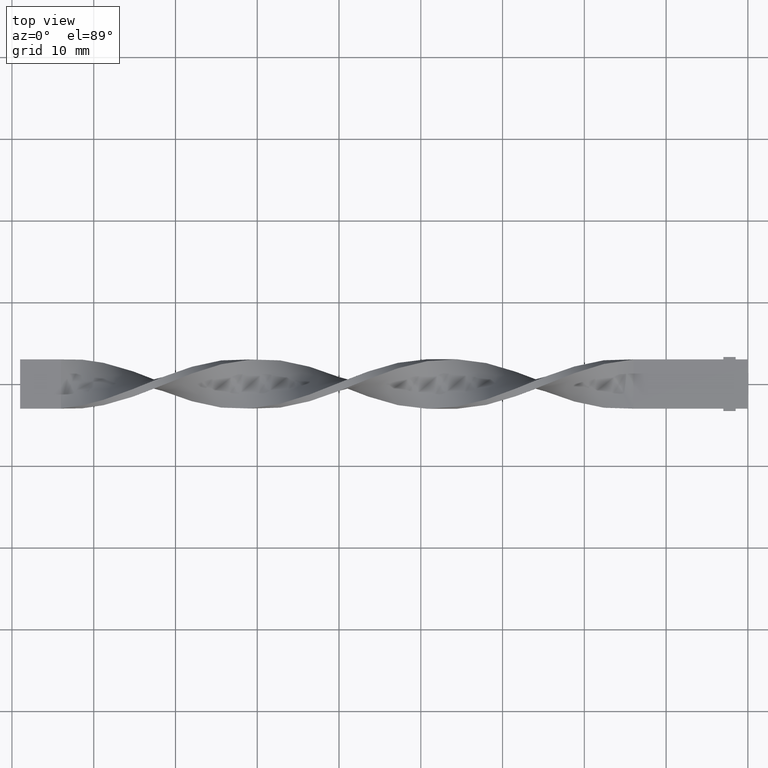
[diagram: clean part render]
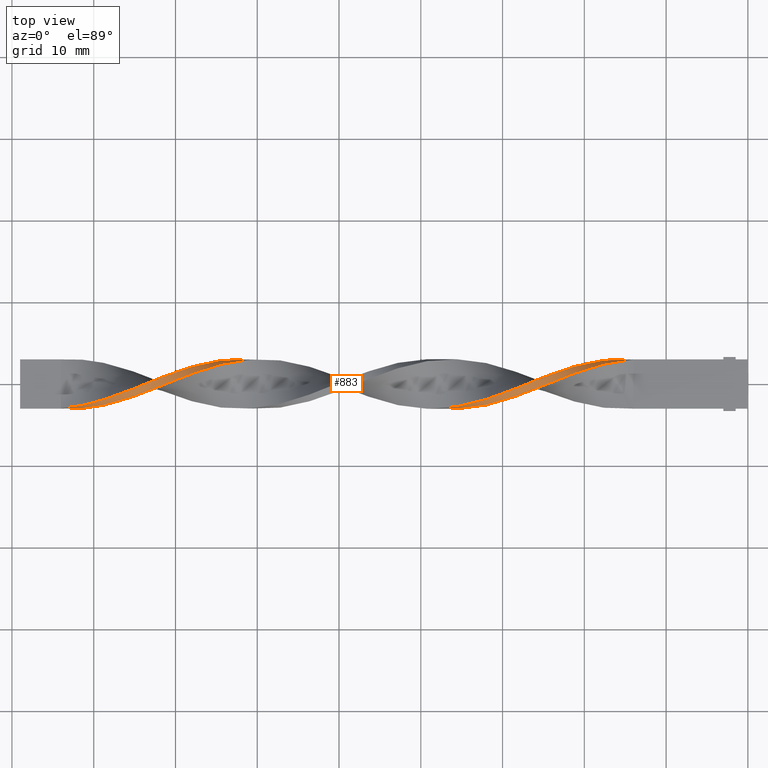
[diagram: same view with one face highlighted and labeled with its STEP entity id]
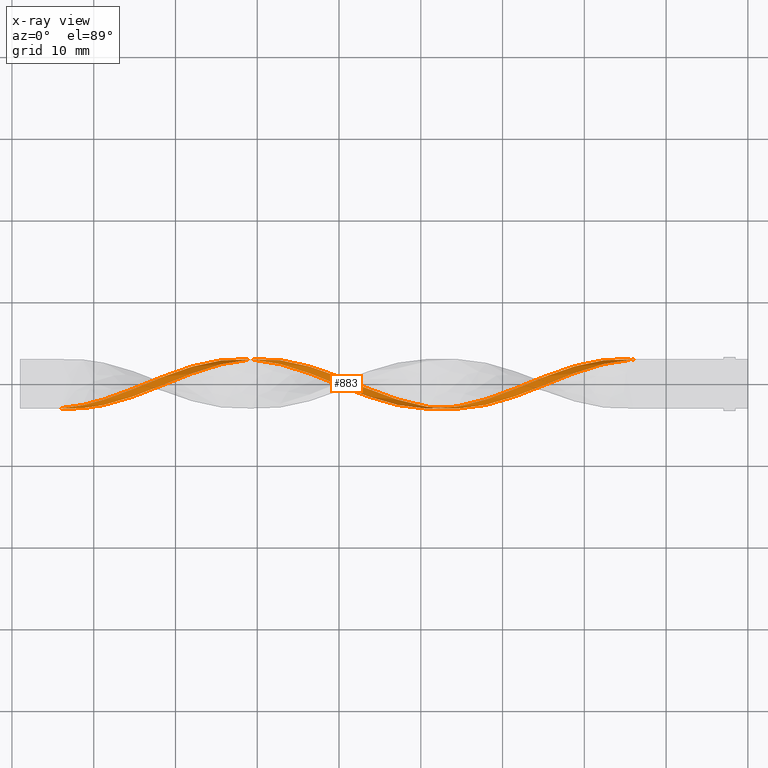
[diagram: x-ray of the same camera — body ghosted, the highlighted face saturated]
A machine part, top view. The second image highlights one B-rep face of the part: STEP entity #883.
The next image is the same camera in x-ray: the body ghosted, the highlighted face saturated — about 0% of this face is hidden behind the body in this view.
In plain terms, the highlighted face is a freeform B-spline surface patch.
Its self-contained STEP definition (entity closure, byte-faithful):
#4 = CARTESIAN_POINT ( 'NONE',  ( -55.28205128205128460, 2.577093573633699286, -1.615112600636835483 ) ) ;
#8 = CARTESIAN_POINT ( 'NONE',  ( -57.07692307692307310, 2.888729662981512458, -0.9514415033047024517 ) ) ;
#12 = CARTESIAN_POINT ( 'NONE',  ( -71.43589743589743080, -0.1347443962830574271, 3.038394962421822942 ) ) ;
#16 = CARTESIAN_POINT ( 'NONE',  ( -49.00000000000000000, 0.5036723384328409825, -3.022034030597047671 ) ) ;
#22 = VERTEX_POINT ( 'NONE', #492 ) ;
#24 = CARTESIAN_POINT ( 'NONE',  ( -42.71794871794872250, -1.913970915392905869, -2.363623348807935454 ) ) ;
#33 = CARTESIAN_POINT ( 'NONE',  ( -44.51282051282051100, -1.292702307246639037, -2.752983971046546685 ) ) ;
#36 = CARTESIAN_POINT ( 'NONE',  ( -84.00000000000000000, -2.999999999999999112, 0.5000000000000003331 ) ) ;
#37 = CARTESIAN_POINT ( 'NONE',  ( -20.28205128205128460, 2.380983398537113160, 1.928028413296780874 ) ) ;
#40 = CARTESIAN_POINT ( 'NONE',  ( -52.58974358974359120, 1.850388947743476065, -2.441810035334000872 ) ) ;
#47 = CARTESIAN_POINT ( 'NONE',  ( -34.64102564102564230, -2.647046231879883305, 1.542569853484617504 ) ) ;
#54 = CARTESIAN_POINT ( 'NONE',  ( -38.23076923076922640, -3.060710991611129472, 0.1357340503332191695 ) ) ;
#59 = CARTESIAN_POINT ( 'NONE',  ( -21.17948717948717885, 2.115686173140295168, 2.184919224315390540 ) ) ;
#62 = CARTESIAN_POINT ( 'NONE',  ( -57.07692307692307310, 2.424006490937743230, -1.836897528957911918 ) ) ;
#64 = CARTESIAN_POINT ( 'NONE',  ( -44.51282051282051100, -1.292702307246639037, -2.752983971046546685 ) ) ;
#66 = CARTESIAN_POINT ( 'NONE',  ( -77.71794871794874382, -2.380983398537112272, 1.928028413296781984 ) ) ;
#71 = CARTESIAN_POINT ( 'NONE',  ( -52.58974358974358410, 0.9584295337030710460, -2.909946448908425243 ) ) ;
#73 = CARTESIAN_POINT ( 'NONE',  ( -32.84615384615384670, -2.773203748730287632, 1.302196787976887871 ) ) ;
#77 = CARTESIAN_POINT ( 'NONE',  ( -78.61538461538461320, -2.577093573633699730, 1.615112600636835261 ) ) ;
#84 = CARTESIAN_POINT ( 'NONE',  ( -14.89743589743589602, 3.060710991611129472, -0.1357340503332185033 ) ) ;
#88 = CARTESIAN_POINT ( 'NONE',  ( -49.89743589743589069, -0.1347443962830601472, -3.038394962421822498 ) ) ;
#92 = CARTESIAN_POINT ( 'NONE',  ( -64.25641025641024839, 2.888729662981512902, 0.9514415033047003423 ) ) ;
#95 = CARTESIAN_POINT ( 'NONE',  ( -69.64102564102564941, 1.531322782470314392, 2.627746284534975718 ) ) ;
#97 = CARTESIAN_POINT ( 'NONE',  ( -49.89743589743589069, 0.8579644778149938533, -2.917858282166499784 ) ) ;
#101 = CARTESIAN_POINT ( 'NONE',  ( -50.79487179487178850, 0.2341835458667242131, -3.054755894246597769 ) ) ;
#102 = CARTESIAN_POINT ( 'NONE',  ( -84.00000000000000000, -2.999999999999999112, -0.4999999999999996669 ) ) ;
#104 = CARTESIAN_POINT ( 'NONE',  ( -24.76923076923076650, -0.1347443962830574271, 3.038394962421822942 ) ) ;
#108 = CARTESIAN_POINT ( 'NONE',  ( -52.58974358974358410, 1.850388947743476065, -2.441810035334000872 ) ) ;
#110 = CARTESIAN_POINT ( 'NONE',  ( -59.76923076923076650, 2.939289008388868307, -0.8642659496667832730 ) ) ;
#116 = CARTESIAN_POINT ( 'NONE',  ( -61.56410256410256920, 2.939289008388868751, 0.8642659496667817187 ) ) ;
#118 = CARTESIAN_POINT ( 'NONE',  ( -78.61538461538461320, -1.913970915392904315, 2.363623348807935898 ) ) ;
#123 = EDGE_LOOP ( 'NONE', ( #554, #1041, #1528, #793 ) ) ;
#129 = CARTESIAN_POINT ( 'NONE',  ( -57.97435897435897090, 3.004255577232739061, -0.6006862186325138131 ) ) ;
#133 = CARTESIAN_POINT ( 'NONE',  ( -37.33333333333332860, -2.999999999999999112, -0.4999999999999996669 ) ) ;
#141 = CARTESIAN_POINT ( 'NONE',  ( -40.92307692307691980, -2.424006490937744562, -1.836897528957909920 ) ) ;
#144 = CARTESIAN_POINT ( 'NONE',  ( -83.10256410256410220, -3.060710991611129472, -0.1357340503332171988 ) ) ;
#152 = CARTESIAN_POINT ( 'NONE',  ( -77.71794871794872961, -2.380983398537112272, 1.928028413296781984 ) ) ;
#158 = CARTESIAN_POINT ( 'NONE',  ( -24.76923076923076650, 0.8579644778149966289, 2.917858282166499340 ) ) ;
#163 = CARTESIAN_POINT ( 'NONE',  ( -48.10256410256410220, 0.1347443962830564002, -3.038394962421822942 ) ) ;
#171 = CARTESIAN_POINT ( 'NONE',  ( -20.28205128205128460, 2.380983398537113160, 1.928028413296780874 ) ) ;
#179 = CARTESIAN_POINT ( 'NONE',  ( -17.58974358974358765, 2.888729662981512902, 0.9514415033047003423 ) ) ;
#186 = CARTESIAN_POINT ( 'NONE',  ( -33.74358974358974450, -2.424006490937744562, 1.836897528957910586 ) ) ;
#190 = CARTESIAN_POINT ( 'NONE',  ( -66.05128205128204399, 2.577093573633700174, 1.615112600636833928 ) ) ;
#196 = CARTESIAN_POINT ( 'NONE',  ( -61.56410256410256920, 3.060710991611129472, -0.1357340503332185311 ) ) ;
#198 = CARTESIAN_POINT ( 'NONE',  ( -31.94871794871794535, -2.577093573633699730, 1.615112600636835261 ) ) ;
#206 = CARTESIAN_POINT ( 'NONE',  ( -37.33333333333332860, -2.999999999999999112, -0.4999999999999996669 ) ) ;
#209 = CARTESIAN_POINT ( 'NONE',  ( -48.10256410256410220, -0.8579644778149976281, -2.917858282166499340 ) ) ;
#213 = CARTESIAN_POINT ( 'NONE',  ( -43.61538461538461320, -2.380983398537113604, -1.928028413296780430 ) ) ;
#216 = CARTESIAN_POINT ( 'NONE',  ( -43.61538461538461320, -1.626975080790205697, -2.596021493184667239 ) ) ;
#218 = CARTESIAN_POINT ( 'NONE',  ( -82.20512820512820440, -2.793167620134375806, 1.203417901575700055 ) ) ;
#223 = CARTESIAN_POINT ( 'NONE',  ( -41.82051282051281760, -2.200966749995605820, -2.131225204431203224 ) ) ;
#226 = CARTESIAN_POINT ( 'NONE',  ( -57.97435897435897090, 2.647046231879883305, -1.542569853484617948 ) ) ;
#229 = CARTESIAN_POINT ( 'NONE',  ( -25.66666666666666785, -0.5036723384328412045, 3.022034030597047671 ) ) ;
#255 = CARTESIAN_POINT ( 'NONE',  ( -71.43589743589743080, -0.1347443962830574271, 3.038394962421822942 ) ) ;
#260 = CARTESIAN_POINT ( 'NONE',  ( -59.76923076923077360, 3.060710991611129916, 0.1357340503332168102 ) ) ;
#264 = CARTESIAN_POINT ( 'NONE',  ( -33.74358974358974450, -2.888729662981512902, 0.9514415033047007864 ) ) ;
#269 = CARTESIAN_POINT ( 'NONE',  ( -45.41025641025640880, -0.9584295337030747097, -2.909946448908424355 ) ) ;
#272 = CARTESIAN_POINT ( 'NONE',  ( -75.92307692307693401, -1.850388947743477175, 2.441810035334000428 ) ) ;
#277 = CARTESIAN_POINT ( 'NONE',  ( -65.15384615384614619, 2.200966749995605376, 2.131225204431203224 ) ) ;
#282 = CARTESIAN_POINT ( 'NONE',  ( -31.05128205128205821, -1.626975080790203920, 2.596021493184668572 ) ) ;
#292 = CARTESIAN_POINT ( 'NONE',  ( -75.02564102564102200, -1.531322782470313726, 2.627746284534976162 ) ) ;
#298 = CARTESIAN_POINT ( 'NONE',  ( -76.82051282051281760, -2.115686173140294724, 2.184919224315390540 ) ) ;
#302 = CARTESIAN_POINT ( 'NONE',  ( -72.33333333333332860, 0.5036723384328416486, 3.022034030597047671 ) ) ;
#308 = CARTESIAN_POINT ( 'NONE',  ( -29.25641025641025905, -0.9584295337030727113, 2.909946448908425243 ) ) ;
#312 = CARTESIAN_POINT ( 'NONE',  ( -81.30769230769233502, -2.647046231879883305, 1.542569853484617726 ) ) ;
#315 = CARTESIAN_POINT ( 'NONE',  ( -47.20512820512820440, -0.2341835458667255176, -3.054755894246597769 ) ) ;
#317 = CARTESIAN_POINT ( 'NONE',  ( -16.69230769230769340, 3.004255577232739061, 0.6006862186325124808 ) ) ;
#326 = CARTESIAN_POINT ( 'NONE',  ( -22.07692307692308020, 1.850388947743477619, 2.441810035334000428 ) ) ;
#329 = CARTESIAN_POINT ( 'NONE',  ( -48.10256410256410220, -0.8579644778149976281, -2.917858282166499340 ) ) ;
#331 = CARTESIAN_POINT ( 'NONE',  ( -18.48717948717948545, 2.200966749995605376, 2.131225204431203224 ) ) ;
#333 = CARTESIAN_POINT ( 'NONE',  ( -49.89743589743589069, -0.1347443962830601472, -3.038394962421822498 ) ) ;
#338 = CARTESIAN_POINT ( 'NONE',  ( -21.17948717948717885, 1.292702307246639037, 2.752983971046546685 ) ) ;
#342 = CARTESIAN_POINT ( 'NONE',  ( -65.15384615384614619, 2.773203748730287632, 1.302196787976887871 ) ) ;
#343 = CARTESIAN_POINT ( 'NONE',  ( -84.00000000000000000, -2.999999999999999112, 0.1666666666666670182 ) ) ;
#348 = CARTESIAN_POINT ( 'NONE',  ( -23.87179487179487580, 0.2341835458667257397, 3.054755894246597769 ) ) ;
#351 = CARTESIAN_POINT ( 'NONE',  ( -56.17948717948717530, 2.200966749995605376, -2.131225204431204112 ) ) ;
#360 = CARTESIAN_POINT ( 'NONE',  ( -61.56410256410256920, 3.060710991611129472, -0.1357340503332185033 ) ) ;
#371 = CARTESIAN_POINT ( 'NONE',  ( -43.61538461538461320, -2.380983398537114049, -1.928028413296780430 ) ) ;
#372 = VECTOR ( 'NONE', #422, 1000.000000000000000 ) ;
#382 = CARTESIAN_POINT ( 'NONE',  ( -66.94871794871794179, 1.626975080790204808, 2.596021493184667683 ) ) ;
#387 = CARTESIAN_POINT ( 'NONE',  ( -72.33333333333332860, -0.5036723384328412045, 3.022034030597047671 ) ) ;
#390 = CARTESIAN_POINT ( 'NONE',  ( -57.07692307692307310, 2.888729662981512458, -0.9514415033047024517 ) ) ;
#397 = CARTESIAN_POINT ( 'NONE',  ( -84.00000000000000000, -2.999999999999999112, -0.4999999999999996669 ) ) ;
#403 = CARTESIAN_POINT ( 'NONE',  ( -41.82051282051281760, -2.200966749995605820, -2.131225204431203224 ) ) ;
#410 = CARTESIAN_POINT ( 'NONE',  ( -56.17948717948717530, 2.773203748730287632, -1.302196787976888315 ) ) ;
#415 = CARTESIAN_POINT ( 'NONE',  ( -23.87179487179487580, 1.212256617197150943, 2.813682533735952340 ) ) ;
#418 = VERTEX_POINT ( 'NONE', #1083 ) ;
#419 = CARTESIAN_POINT ( 'NONE',  ( -67.84615384615385381, 1.292702307246639037, 2.752983971046546685 ) ) ;
#422 = DIRECTION ( 'NONE',  ( -0.000000000000000000, -0.000000000000000000, -1.000000000000000000 ) ) ;
#424 = CARTESIAN_POINT ( 'NONE',  ( -25.66666666666666785, 0.5036723384328416486, 3.022034030597047671 ) ) ;
#428 = CARTESIAN_POINT ( 'NONE',  ( -80.41025641025640880, -2.888729662981512902, 0.9514415033047007864 ) ) ;
#431 = CARTESIAN_POINT ( 'NONE',  ( -74.12820512820512420, -1.212256617197150721, 2.813682533735952340 ) ) ;
#437 = CARTESIAN_POINT ( 'NONE',  ( -53.48717948717948900, 1.292702307246637927, -2.752983971046546685 ) ) ;
#439 = CARTESIAN_POINT ( 'NONE',  ( -36.43589743589743790, -3.060710991611129472, -0.1357340503332171988 ) ) ;
#441 = CARTESIAN_POINT ( 'NONE',  ( -81.30769230769232081, -3.004255577232739061, 0.6006862186325134800 ) ) ;
#445 = CARTESIAN_POINT ( 'NONE',  ( -78.61538461538461320, -1.913970915392904315, 2.363623348807935898 ) ) ;
#448 = CARTESIAN_POINT ( 'NONE',  ( -30.15384615384615330, -2.115686173140294724, 2.184919224315390540 ) ) ;
#450 = CARTESIAN_POINT ( 'NONE',  ( -83.10256410256410220, -3.060710991611129472, -0.1357340503332171711 ) ) ;
#454 = CARTESIAN_POINT ( 'NONE',  ( -33.74358974358974450, -2.888729662981512902, 0.9514415033047007864 ) ) ;
#467 = CARTESIAN_POINT ( 'NONE',  ( -71.43589743589743080, 0.8579644778149966289, 2.917858282166499340 ) ) ;
#471 = CARTESIAN_POINT ( 'NONE',  ( -19.38461538461538325, 1.913970915392905425, 2.363623348807935454 ) ) ;
#474 = CARTESIAN_POINT ( 'NONE',  ( -54.38461538461538680, 1.626975080790202366, -2.596021493184669016 ) ) ;
#483 = CARTESIAN_POINT ( 'NONE',  ( -62.46153846153845990, 2.793167620134376694, 1.203417901575699167 ) ) ;
#486 = CARTESIAN_POINT ( 'NONE',  ( -60.66666666666666430, 2.999999999999999112, -0.5000000000000000000 ) ) ;
#492 = CARTESIAN_POINT ( 'NONE',  ( -13.99999999999999822, 2.999999999999999112, -0.5000000000000000000 ) ) ;
#494 = CARTESIAN_POINT ( 'NONE',  ( -57.07692307692307310, 2.424006490937743230, -1.836897528957911918 ) ) ;
#499 = CARTESIAN_POINT ( 'NONE',  ( -44.51282051282051100, -2.115686173140295168, -2.184919224315390540 ) ) ;
#501 = CARTESIAN_POINT ( 'NONE',  ( -18.48717948717948545, 2.200966749995605376, 2.131225204431203224 ) ) ;
#509 = CARTESIAN_POINT ( 'NONE',  ( -32.84615384615384670, -2.773203748730287632, 1.302196787976888093 ) ) ;
#522 = CARTESIAN_POINT ( 'NONE',  ( -50.79487179487178850, 1.212256617197149611, -2.813682533735953228 ) ) ;
#526 = CARTESIAN_POINT ( 'NONE',  ( -16.69230769230769695, 3.004255577232739061, 0.6006862186325124808 ) ) ;
#536 = CARTESIAN_POINT ( 'NONE',  ( -28.35897435897435770, -0.5963065397848987814, 2.982351171577511728 ) ) ;
#539 = CARTESIAN_POINT ( 'NONE',  ( -64.25641025641024839, 2.424006490937744562, 1.836897528957910142 ) ) ;
#542 = CARTESIAN_POINT ( 'NONE',  ( -21.17948717948717885, 2.115686173140295168, 2.184919224315390540 ) ) ;
#546 = CARTESIAN_POINT ( 'NONE',  ( -75.92307692307691980, -1.850388947743477397, 2.441810035334000428 ) ) ;
#551 = CARTESIAN_POINT ( 'NONE',  ( -39.12820512820512420, -3.032483284421934044, -0.2324760841496460451 ) ) ;
#554 = ORIENTED_EDGE ( 'NONE', *, *, #1392, .T. ) ;
#555 = CARTESIAN_POINT ( 'NONE',  ( -82.20512820512820440, -3.032483284421934044, 0.2324760841496482100 ) ) ;
#560 = CARTESIAN_POINT ( 'NONE',  ( -75.92307692307693401, -0.9584295337030727113, 2.909946448908424799 ) ) ;
#569 = CARTESIAN_POINT ( 'NONE',  ( -14.89743589743589602, 2.939289008388868751, 0.8642659496667816077 ) ) ;
#570 = CARTESIAN_POINT ( 'NONE',  ( -67.84615384615385381, 2.115686173140295168, 2.184919224315390540 ) ) ;
#576 = CARTESIAN_POINT ( 'NONE',  ( -46.30769230769230660, -1.531322782470314836, -2.627746284534975718 ) ) ;
#579 = CARTESIAN_POINT ( 'NONE',  ( -45.41025641025640880, -0.9584295337030748207, -2.909946448908423910 ) ) ;
#581 = CARTESIAN_POINT ( 'NONE',  ( -27.46153846153846345, -0.2341835458667254066, 3.054755894246597769 ) ) ;
#586 = CARTESIAN_POINT ( 'NONE',  ( -62.46153846153845990, 3.032483284421934044, 0.2324760841496470720 ) ) ;
#589 = CARTESIAN_POINT ( 'NONE',  ( -73.23076923076924061, 0.1347443962830584541, 3.038394962421822498 ) ) ;
#592 = CARTESIAN_POINT ( 'NONE',  ( -58.87179487179486870, 2.793167620134375362, -1.203417901575701610 ) ) ;
#596 = CARTESIAN_POINT ( 'NONE',  ( -26.56410256410256210, -0.8579644778149956297, 2.917858282166499784 ) ) ;
#598 = CARTESIAN_POINT ( 'NONE',  ( -47.20512820512820440, -1.212256617197150721, -2.813682533735952340 ) ) ;
#606 = CARTESIAN_POINT ( 'NONE',  ( -72.33333333333332860, 0.5036723384328416486, 3.022034030597047671 ) ) ;
#611 = CARTESIAN_POINT ( 'NONE',  ( -65.15384615384614619, 2.200966749995605376, 2.131225204431203224 ) ) ;
#620 = CARTESIAN_POINT ( 'NONE',  ( -46.30769230769230660, -1.531322782470314836, -2.627746284534975718 ) ) ;
#625 = CARTESIAN_POINT ( 'NONE',  ( -67.84615384615385381, 1.292702307246639037, 2.752983971046546685 ) ) ;
#630 = CARTESIAN_POINT ( 'NONE',  ( -69.64102564102564941, 0.5963065397848997806, 2.982351171577511284 ) ) ;
#635 = CARTESIAN_POINT ( 'NONE',  ( -69.64102564102564941, 0.5963065397848997806, 2.982351171577511284 ) ) ;
#639 = CARTESIAN_POINT ( 'NONE',  ( -46.30769230769230660, -0.5963065397849001137, -2.982351171577511284 ) ) ;
#640 = CARTESIAN_POINT ( 'NONE',  ( -33.74358974358974450, -2.424006490937744562, 1.836897528957910586 ) ) ;
#651 = VERTEX_POINT ( 'NONE', #1194 ) ;
#652 = CARTESIAN_POINT ( 'NONE',  ( -36.43589743589743790, -3.060710991611129472, -0.1357340503332171711 ) ) ;
#658 = CARTESIAN_POINT ( 'NONE',  ( -58.87179487179486870, 3.032483284421933600, -0.2324760841496498753 ) ) ;
#661 = CARTESIAN_POINT ( 'NONE',  ( -31.94871794871794535, -1.913970915392904315, 2.363623348807935898 ) ) ;
#669 = CARTESIAN_POINT ( 'NONE',  ( -17.58974358974358765, 2.888729662981512902, 0.9514415033047003423 ) ) ;
#681 = CARTESIAN_POINT ( 'NONE',  ( -64.25641025641024839, 2.888729662981512902, 0.9514415033047003423 ) ) ;
#688 = CARTESIAN_POINT ( 'NONE',  ( -13.99999999999999822, 2.999999999999999112, 0.5000000000000000000 ) ) ;
#690 = CARTESIAN_POINT ( 'NONE',  ( -57.97435897435897090, 2.647046231879883305, -1.542569853484618170 ) ) ;
#693 = CARTESIAN_POINT ( 'NONE',  ( -25.66666666666666785, 0.5036723384328416486, 3.022034030597047671 ) ) ;
#697 = CARTESIAN_POINT ( 'NONE',  ( -74.12820512820512420, -0.2341835458667254066, 3.054755894246597769 ) ) ;
#700 = CARTESIAN_POINT ( 'NONE',  ( -40.02564102564102200, -2.647046231879884637, -1.542569853484615505 ) ) ;
#703 = CARTESIAN_POINT ( 'NONE',  ( -32.84615384615384670, -2.200966749995605376, 2.131225204431203668 ) ) ;
#708 = CARTESIAN_POINT ( 'NONE',  ( -40.92307692307691980, -2.888729662981512902, -0.9514415033047001202 ) ) ;
#714 = CARTESIAN_POINT ( 'NONE',  ( -70.53846153846153300, 1.212256617197150943, 2.813682533735952340 ) ) ;
#718 = CARTESIAN_POINT ( 'NONE',  ( -50.79487179487178850, 0.2341835458667242409, -3.054755894246597769 ) ) ;
#720 = CARTESIAN_POINT ( 'NONE',  ( -46.30769230769230660, -0.5963065397849001137, -2.982351171577511284 ) ) ;
#724 = CARTESIAN_POINT ( 'NONE',  ( -22.07692307692308020, 0.9584295337030730444, 2.909946448908425243 ) ) ;
#728 = CARTESIAN_POINT ( 'NONE',  ( -16.69230769230769695, 2.647046231879884193, 1.542569853484616615 ) ) ;
#730 = CARTESIAN_POINT ( 'NONE',  ( -66.05128205128204399, 2.577093573633700174, 1.615112600636833928 ) ) ;
#733 = CARTESIAN_POINT ( 'NONE',  ( -26.56410256410256210, -0.8579644778149956297, 2.917858282166499784 ) ) ;
#740 = CARTESIAN_POINT ( 'NONE',  ( -58.87179487179486870, 3.032483284421933600, -0.2324760841496498753 ) ) ;
#751 = CARTESIAN_POINT ( 'NONE',  ( -49.00000000000000000, -0.5036723384328419817, -3.022034030597047671 ) ) ;
#763 = CARTESIAN_POINT ( 'NONE',  ( -54.38461538461538680, 2.380983398537111384, -1.928028413296783095 ) ) ;
#768 = CARTESIAN_POINT ( 'NONE',  ( -74.12820512820510999, -1.212256617197150721, 2.813682533735952340 ) ) ;
#769 =( BOUNDED_CURVE ( )  B_SPLINE_CURVE ( 2, ( #1196, #84, #1545, #317, #179, #1444, #1189, #171, #59, #326, #1081, #1063, #962, #693, #1553, #581, #1458, #308, #1466, #1319, #837, #703, #186, #47, #1215, #1090, #1569, #1072, #1561, #947, #1451, #828, #980, #371, #499, #1006, #620, #598, #209, #751, #333, #101, #1223, #1601, #1107, #474, #1484, #351, #494, #226, #1497, #110, #486, #360, #1364, #1345, #92, #342, #730, #853, #970, #1241, #998, #714, #467, #606, #589, #1098, #1584, #1232, #876, #1114, #118, #1616, #870, #1475, #218, #1257, #990 ),
 .UNSPECIFIED., .F., .T. ) 
 B_SPLINE_CURVE_WITH_KNOTS ( ( 3, 2, 2, 2, 2, 2, 2, 2, 2, 2, 2, 2, 2, 2, 2, 2, 2, 2, 2, 2, 2, 2, 2, 2, 2, 2, 2, 2, 2, 2, 2, 2, 2, 2, 2, 2, 2, 2, 2, 3 ),
 ( 0.000000000000000000, 0.01923076923076923184, 0.03846153846153846367, 0.05769230769230768857, 0.07692307692307692735, 0.09615384615384615918, 0.1153846153846153771, 0.1346153846153846090, 0.1538461538461538547, 0.1730769230769230449, 0.1923076923076923184, 0.2115384615384615363, 0.2307692307692307543, 0.2500000000000000000, 0.2692307692307692180, 0.2884615384615384359, 0.3076923076923077094, 0.3269230769230769273, 0.3461538461538460898, 0.3653846153846153633, 0.3846153846153846367, 0.4038461538461539102, 0.4230769230769230727, 0.4423076923076922906, 0.4615384615384615086, 0.4807692307692307820, 0.5000000000000000000, 0.5192307692307692735, 0.5384615384615384359, 0.5576923076923077094, 0.5769230769230768718, 0.5961538461538461453, 0.6153846153846154188, 0.6346153846153845812, 0.6538461538461538547, 0.6730769230769230171, 0.6923076923076921796, 0.7115384615384615641, 0.7307692307692307265, 0.7500000000000000000 ),
 .UNSPECIFIED. ) 
 CURVE ( )  GEOMETRIC_REPRESENTATION_ITEM ( )  RATIONAL_B_SPLINE_CURVE ( ( 1.000000000000000000, 0.9927088740980539727, 1.000000000000000000, 0.9927088740980539727, 1.000000000000000000, 0.9927088740980539727, 1.000000000000000000, 0.9927088740980539727, 1.000000000000000000, 0.9927088740980539727, 1.000000000000000000, 0.9927088740980539727, 1.000000000000000000, 0.9927088740980539727, 1.000000000000000000, 0.9927088740980539727, 1.000000000000000000, 0.9927088740980539727, 1.000000000000000000, 0.9927088740980539727, 1.000000000000000000, 0.9927088740980539727, 1.000000000000000000, 0.9927088740980539727, 1.000000000000000000, 0.9927088740980539727, 1.000000000000000000, 0.9927088740980539727, 1.000000000000000000, 0.9927088740980539727, 1.000000000000000000, 0.9927088740980539727, 1.000000000000000000, 0.9927088740980539727, 1.000000000000000000, 0.9927088740980539727, 1.000000000000000000, 0.9927088740980539727, 1.000000000000000000, 0.9927088740980539727, 1.000000000000000000, 0.9927088740980539727, 1.000000000000000000, 0.9927088740980539727, 1.000000000000000000, 0.9927088740980539727, 1.000000000000000000, 0.9927088740980539727, 1.000000000000000000, 0.9927088740980539727, 1.000000000000000000, 0.9927088740980539727, 1.000000000000000000, 0.9927088740980539727, 1.000000000000000000, 0.9927088740980539727, 1.000000000000000000, 0.9927088740980539727, 1.000000000000000000, 0.9927088740980539727, 1.000000000000000000, 0.9927088740980539727, 1.000000000000000000, 0.9927088740980539727, 1.000000000000000000, 0.9927088740980539727, 1.000000000000000000, 0.9927088740980539727, 1.000000000000000000, 0.9927088740980539727, 1.000000000000000000, 0.9927088740980539727, 1.000000000000000000, 0.9927088740980539727, 1.000000000000000000, 0.9927088740980539727, 1.000000000000000000, 0.9927088740980539727, 1.000000000000000000 ) ) 
 REPRESENTATION_ITEM ( '' )  );
#773 = CARTESIAN_POINT ( 'NONE',  ( -14.89743589743589602, 3.060710991611129472, -0.1357340503332185311 ) ) ;
#777 = CARTESIAN_POINT ( 'NONE',  ( -43.61538461538461320, -1.626975080790205919, -2.596021493184667239 ) ) ;
#781 = CARTESIAN_POINT ( 'NONE',  ( -79.51282051282051100, -2.773203748730287632, 1.302196787976887871 ) ) ;
#785 = CARTESIAN_POINT ( 'NONE',  ( -61.56410256410256920, 2.939289008388868751, 0.8642659496667816077 ) ) ;
#793 = ORIENTED_EDGE ( 'NONE', *, *, #1101, .F. ) ;
#804 = CARTESIAN_POINT ( 'NONE',  ( -36.43589743589743790, -2.939289008388868751, 0.8642659496667827179 ) ) ;
#810 = CARTESIAN_POINT ( 'NONE',  ( -79.51282051282051100, -2.773203748730287632, 1.302196787976888093 ) ) ;
#814 = CARTESIAN_POINT ( 'NONE',  ( -80.41025641025640880, -2.424006490937744562, 1.836897528957910586 ) ) ;
#819 = CARTESIAN_POINT ( 'NONE',  ( -84.00000000000000000, -2.999999999999999112, -0.4999999999999996669 ) ) ;
#824 = CARTESIAN_POINT ( 'NONE',  ( -42.71794871794872250, -2.577093573633700618, -1.615112600636833928 ) ) ;
#826 = CARTESIAN_POINT ( 'NONE',  ( -48.10256410256410220, 0.1347443962830564002, -3.038394962421822942 ) ) ;
#828 = CARTESIAN_POINT ( 'NONE',  ( -41.82051282051281760, -2.773203748730288076, -1.302196787976887205 ) ) ;
#837 = CARTESIAN_POINT ( 'NONE',  ( -31.94871794871794535, -1.913970915392904315, 2.363623348807935898 ) ) ;
#840 = CARTESIAN_POINT ( 'NONE',  ( -49.00000000000000711, -0.5036723384328419817, -3.022034030597047671 ) ) ;
#843 = CARTESIAN_POINT ( 'NONE',  ( -42.71794871794872250, -1.913970915392905869, -2.363623348807935454 ) ) ;
#849 = CARTESIAN_POINT ( 'NONE',  ( -54.38461538461538680, 1.626975080790202366, -2.596021493184669016 ) ) ;
#851 = CARTESIAN_POINT ( 'NONE',  ( -22.07692307692308376, 0.9584295337030730444, 2.909946448908424799 ) ) ;
#853 = CARTESIAN_POINT ( 'NONE',  ( -66.94871794871795601, 2.380983398537113160, 1.928028413296780874 ) ) ;
#858 = CARTESIAN_POINT ( 'NONE',  ( -31.05128205128205821, -2.380983398537112272, 1.928028413296781984 ) ) ;
#870 = CARTESIAN_POINT ( 'NONE',  ( -80.41025641025640880, -2.424006490937744562, 1.836897528957910586 ) ) ;
#876 = CARTESIAN_POINT ( 'NONE',  ( -76.82051282051281760, -1.292702307246638371, 2.752983971046546685 ) ) ;
#879 = CARTESIAN_POINT ( 'NONE',  ( -29.25641025641025905, -1.850388947743477397, 2.441810035334000428 ) ) ;
#883 = ADVANCED_FACE ( 'NONE', ( #1096 ), #1048, .T. ) ;
#884 = CARTESIAN_POINT ( 'NONE',  ( -63.35897435897435770, 2.647046231879884193, 1.542569853484616615 ) ) ;
#895 = CARTESIAN_POINT ( 'NONE',  ( -73.23076923076924061, -0.8579644778149956297, 2.917858282166499784 ) ) ;
#901 = CARTESIAN_POINT ( 'NONE',  ( -34.64102564102564230, -3.004255577232739061, 0.6006862186325134800 ) ) ;
#904 = CARTESIAN_POINT ( 'NONE',  ( -18.48717948717948545, 2.773203748730287632, 1.302196787976887649 ) ) ;
#908 = CARTESIAN_POINT ( 'NONE',  ( -55.28205128205128460, 2.577093573633699286, -1.615112600636835483 ) ) ;
#911 = CARTESIAN_POINT ( 'NONE',  ( -82.20512820512820440, -3.032483284421934044, 0.2324760841496482100 ) ) ;
#916 = CARTESIAN_POINT ( 'NONE',  ( -60.66666666666666430, 2.999999999999999112, 0.5000000000000000000 ) ) ;
#919 = CARTESIAN_POINT ( 'NONE',  ( -80.41025641025640880, -2.888729662981512902, 0.9514415033047007864 ) ) ;
#922 = CARTESIAN_POINT ( 'NONE',  ( -31.94871794871794535, -2.577093573633699730, 1.615112600636835261 ) ) ;
#928 = CARTESIAN_POINT ( 'NONE',  ( -34.64102564102564230, -2.647046231879883305, 1.542569853484617726 ) ) ;
#935 = CARTESIAN_POINT ( 'NONE',  ( -13.99999999999999822, 2.999999999999999112, 0.5000000000000000000 ) ) ;
#936 = CARTESIAN_POINT ( 'NONE',  ( -78.61538461538461320, -2.577093573633699730, 1.615112600636835261 ) ) ;
#943 = CARTESIAN_POINT ( 'NONE',  ( -63.35897435897435770, 3.004255577232739061, 0.6006862186325124808 ) ) ;
#947 = CARTESIAN_POINT ( 'NONE',  ( -40.02564102564102200, -3.004255577232739505, -0.6006862186325113706 ) ) ;
#950 = CARTESIAN_POINT ( 'NONE',  ( -16.69230769230769340, 2.647046231879884193, 1.542569853484616615 ) ) ;
#954 = CARTESIAN_POINT ( 'NONE',  ( -38.23076923076922640, -2.939289008388868751, -0.8642659496667810526 ) ) ;
#959 = CARTESIAN_POINT ( 'NONE',  ( -41.82051282051281760, -2.773203748730288076, -1.302196787976887205 ) ) ;
#962 = CARTESIAN_POINT ( 'NONE',  ( -24.76923076923076650, 0.8579644778149966289, 2.917858282166499340 ) ) ;
#967 = CARTESIAN_POINT ( 'NONE',  ( -17.58974358974358765, 2.424006490937744562, 1.836897528957910142 ) ) ;
#970 = CARTESIAN_POINT ( 'NONE',  ( -67.84615384615385381, 2.115686173140295168, 2.184919224315390540 ) ) ;
#971 = CARTESIAN_POINT ( 'NONE',  ( -84.00000000000000000, -2.999999999999999112, -0.1666666666666663521 ) ) ;
#973 = CARTESIAN_POINT ( 'NONE',  ( -20.28205128205128460, 1.626975080790205030, 2.596021493184667683 ) ) ;
#975 = CARTESIAN_POINT ( 'NONE',  ( -44.51282051282051100, -2.115686173140295168, -2.184919224315390540 ) ) ;
#980 = CARTESIAN_POINT ( 'NONE',  ( -42.71794871794872250, -2.577093573633700618, -1.615112600636833928 ) ) ;
#988 = CARTESIAN_POINT ( 'NONE',  ( -53.48717948717948900, 2.115686173140294724, -2.184919224315391428 ) ) ;
#990 = CARTESIAN_POINT ( 'NONE',  ( -84.00000000000000000, -2.999999999999999112, 0.5000000000000003331 ) ) ;
#996 = CARTESIAN_POINT ( 'NONE',  ( -51.69230769230769340, 1.531322782470313726, -2.627746284534976162 ) ) ;
#998 = CARTESIAN_POINT ( 'NONE',  ( -69.64102564102564941, 1.531322782470314392, 2.627746284534975718 ) ) ;
#1000 = CARTESIAN_POINT ( 'NONE',  ( -28.35897435897435770, -1.531322782470313726, 2.627746284534976162 ) ) ;
#1006 = CARTESIAN_POINT ( 'NONE',  ( -45.41025641025640880, -1.850388947743478951, -2.441810035333998652 ) ) ;
#1012 = CARTESIAN_POINT ( 'NONE',  ( -70.53846153846153300, 0.2341835458667257397, 3.054755894246597769 ) ) ;
#1016 = CARTESIAN_POINT ( 'NONE',  ( -66.05128205128204399, 1.913970915392905425, 2.363623348807935454 ) ) ;
#1022 = CARTESIAN_POINT ( 'NONE',  ( -70.53846153846153300, 0.2341835458667257397, 3.054755894246597769 ) ) ;
#1025 = CARTESIAN_POINT ( 'NONE',  ( -73.23076923076924061, -0.8579644778149956297, 2.917858282166499784 ) ) ;
#1034 = CARTESIAN_POINT ( 'NONE',  ( -19.38461538461538325, 2.577093573633700174, 1.615112600636833928 ) ) ;
#1037 = CARTESIAN_POINT ( 'NONE',  ( -40.02564102564102200, -2.647046231879884637, -1.542569853484615505 ) ) ;
#1041 = ORIENTED_EDGE ( 'NONE', *, *, #1169, .T. ) ;
#1046 = CARTESIAN_POINT ( 'NONE',  ( -27.46153846153846345, -0.2341835458667254066, 3.054755894246597769 ) ) ;
#1048 =( BOUNDED_SURFACE ( )  B_SPLINE_SURFACE ( 1, 2, ( 
 ( #1582, #1079, #1591, #728, #967, #331, #471, #1472, #338, #851, #1482, #348, #1335, #1204, #596, #1213, #1575, #1448, #448, #858, #198, #73, #454, #1354, #1565, #439, #206, #954, #1362, #700, #1559, #223, #843, #216, #64, #579, #720, #315, #826, #1230, #97, #1378, #996, #108, #988, #763, #4, #1370, #390, #129, #740, #260, #1390, #116, #483, #884, #1268, #611, #1260, #382, #625, #1133, #635, #1012, #12, #1519, #1025, #431, #292, #272, #1306, #152, #936, #781, #919, #1298, #911, #144, #397 ),
 ( #1407, #773, #1174, #526, #669, #904, #1034, #37, #542, #1524, #1289, #415, #158, #424, #1163, #1046, #536, #1533, #1422, #282, #661, #1539, #640, #928, #1431, #804, #1184, #54, #551, #1058, #708, #959, #824, #213, #975, #1219, #576, #1352, #329, #840, #88, #718, #1228, #71, #437, #849, #1453, #1333, #62, #690, #592, #1076, #1557, #196, #586, #943, #681, #1572, #190, #1589, #570, #1315, #95, #1210, #1340, #302, #1446, #697, #1102, #560, #1462, #1067, #445, #1200, #814, #312, #1470, #1094, #1326 ) ),
 .UNSPECIFIED., .F., .F., .F. ) 
 B_SPLINE_SURFACE_WITH_KNOTS ( ( 2, 2 ),
 ( 3, 2, 2, 2, 2, 2, 2, 2, 2, 2, 2, 2, 2, 2, 2, 2, 2, 2, 2, 2, 2, 2, 2, 2, 2, 2, 2, 2, 2, 2, 2, 2, 2, 2, 2, 2, 2, 2, 2, 3 ),
 ( 0.000000000000000000, 1.000000000000000000 ),
 ( 0.000000000000000000, 0.01923076923076923184, 0.03846153846153846367, 0.05769230769230769551, 0.07692307692307692735, 0.09615384615384615918, 0.1153846153846153910, 0.1346153846153846090, 0.1538461538461538547, 0.1730769230769230727, 0.1923076923076923184, 0.2115384615384615363, 0.2307692307692307820, 0.2500000000000000000, 0.2692307692307692180, 0.2884615384615384359, 0.3076923076923077094, 0.3269230769230769273, 0.3461538461538461453, 0.3653846153846153633, 0.3846153846153846367, 0.4038461538461538547, 0.4230769230769230727, 0.4423076923076922906, 0.4615384615384615641, 0.4807692307692307820, 0.5000000000000000000, 0.5192307692307692735, 0.5384615384615384359, 0.5576923076923077094, 0.5769230769230768718, 0.5961538461538461453, 0.6153846153846154188, 0.6346153846153845812, 0.6538461538461538547, 0.6730769230769231282, 0.6923076923076922906, 0.7115384615384615641, 0.7307692307692307265, 0.7500000000000000000 ),
 .UNSPECIFIED. ) 
 GEOMETRIC_REPRESENTATION_ITEM ( )  RATIONAL_B_SPLINE_SURFACE ( (
 ( 1.000000000000000000, 0.9927088740980539727, 1.000000000000000000, 0.9927088740980539727, 1.000000000000000000, 0.9927088740980539727, 1.000000000000000000, 0.9927088740980539727, 1.000000000000000000, 0.9927088740980539727, 1.000000000000000000, 0.9927088740980539727, 1.000000000000000000, 0.9927088740980539727, 1.000000000000000000, 0.9927088740980539727, 1.000000000000000000, 0.9927088740980539727, 1.000000000000000000, 0.9927088740980539727, 1.000000000000000000, 0.9927088740980539727, 1.000000000000000000, 0.9927088740980539727, 1.000000000000000000, 0.9927088740980539727, 1.000000000000000000, 0.9927088740980539727, 1.000000000000000000, 0.9927088740980539727, 1.000000000000000000, 0.9927088740980539727, 1.000000000000000000, 0.9927088740980539727, 1.000000000000000000, 0.9927088740980539727, 1.000000000000000000, 0.9927088740980539727, 1.000000000000000000, 0.9927088740980539727, 1.000000000000000000, 0.9927088740980539727, 1.000000000000000000, 0.9927088740980539727, 1.000000000000000000, 0.9927088740980539727, 1.000000000000000000, 0.9927088740980539727, 1.000000000000000000, 0.9927088740980539727, 1.000000000000000000, 0.9927088740980539727, 1.000000000000000000, 0.9927088740980539727, 1.000000000000000000, 0.9927088740980539727, 1.000000000000000000, 0.9927088740980539727, 1.000000000000000000, 0.9927088740980539727, 1.000000000000000000, 0.9927088740980539727, 1.000000000000000000, 0.9927088740980539727, 1.000000000000000000, 0.9927088740980539727, 1.000000000000000000, 0.9927088740980539727, 1.000000000000000000, 0.9927088740980539727, 1.000000000000000000, 0.9927088740980539727, 1.000000000000000000, 0.9927088740980539727, 1.000000000000000000, 0.9927088740980539727, 1.000000000000000000, 0.9927088740980539727, 1.000000000000000000),
 ( 1.000000000000000000, 0.9927088740980539727, 1.000000000000000000, 0.9927088740980539727, 1.000000000000000000, 0.9927088740980539727, 1.000000000000000000, 0.9927088740980539727, 1.000000000000000000, 0.9927088740980539727, 1.000000000000000000, 0.9927088740980539727, 1.000000000000000000, 0.9927088740980539727, 1.000000000000000000, 0.9927088740980539727, 1.000000000000000000, 0.9927088740980539727, 1.000000000000000000, 0.9927088740980539727, 1.000000000000000000, 0.9927088740980539727, 1.000000000000000000, 0.9927088740980539727, 1.000000000000000000, 0.9927088740980539727, 1.000000000000000000, 0.9927088740980539727, 1.000000000000000000, 0.9927088740980539727, 1.000000000000000000, 0.9927088740980539727, 1.000000000000000000, 0.9927088740980539727, 1.000000000000000000, 0.9927088740980539727, 1.000000000000000000, 0.9927088740980539727, 1.000000000000000000, 0.9927088740980539727, 1.000000000000000000, 0.9927088740980539727, 1.000000000000000000, 0.9927088740980539727, 1.000000000000000000, 0.9927088740980539727, 1.000000000000000000, 0.9927088740980539727, 1.000000000000000000, 0.9927088740980539727, 1.000000000000000000, 0.9927088740980539727, 1.000000000000000000, 0.9927088740980539727, 1.000000000000000000, 0.9927088740980539727, 1.000000000000000000, 0.9927088740980539727, 1.000000000000000000, 0.9927088740980539727, 1.000000000000000000, 0.9927088740980539727, 1.000000000000000000, 0.9927088740980539727, 1.000000000000000000, 0.9927088740980539727, 1.000000000000000000, 0.9927088740980539727, 1.000000000000000000, 0.9927088740980539727, 1.000000000000000000, 0.9927088740980539727, 1.000000000000000000, 0.9927088740980539727, 1.000000000000000000, 0.9927088740980539727, 1.000000000000000000, 0.9927088740980539727, 1.000000000000000000) ) ) 
 REPRESENTATION_ITEM ( '' )  SURFACE ( )  );
#1058 = CARTESIAN_POINT ( 'NONE',  ( -40.02564102564102200, -3.004255577232739505, -0.6006862186325113706 ) ) ;
#1063 = CARTESIAN_POINT ( 'NONE',  ( -23.87179487179487580, 1.212256617197150943, 2.813682533735952340 ) ) ;
#1067 = CARTESIAN_POINT ( 'NONE',  ( -77.71794871794872961, -1.626975080790203920, 2.596021493184668572 ) ) ;
#1072 = CARTESIAN_POINT ( 'NONE',  ( -38.23076923076922640, -3.060710991611129472, 0.1357340503332191972 ) ) ;
#1076 = CARTESIAN_POINT ( 'NONE',  ( -59.76923076923077360, 2.939289008388868307, -0.8642659496667831620 ) ) ;
#1079 = CARTESIAN_POINT ( 'NONE',  ( -14.89743589743589602, 2.939289008388868751, 0.8642659496667817187 ) ) ;
#1081 = CARTESIAN_POINT ( 'NONE',  ( -22.97435897435897090, 1.531322782470314392, 2.627746284534975718 ) ) ;
#1083 = CARTESIAN_POINT ( 'NONE',  ( -13.99999999999999822, 2.999999999999999112, 0.5000000000000000000 ) ) ;
#1090 = CARTESIAN_POINT ( 'NONE',  ( -36.43589743589743790, -2.939289008388868751, 0.8642659496667828289 ) ) ;
#1094 = CARTESIAN_POINT ( 'NONE',  ( -83.10256410256410220, -2.939289008388868751, 0.8642659496667827179 ) ) ;
#1096 = FACE_OUTER_BOUND ( 'NONE', #123, .T. ) ;
#1098 = CARTESIAN_POINT ( 'NONE',  ( -74.12820512820510999, -0.2341835458667254066, 3.054755894246597769 ) ) ;
#1101 = EDGE_CURVE ( 'NONE', #418, #651, #1224, .T. ) ;
#1102 = CARTESIAN_POINT ( 'NONE',  ( -75.02564102564102200, -0.5963065397848987814, 2.982351171577511728 ) ) ;
#1107 = CARTESIAN_POINT ( 'NONE',  ( -53.48717948717948900, 1.292702307246637927, -2.752983971046546685 ) ) ;
#1114 = CARTESIAN_POINT ( 'NONE',  ( -77.71794871794874382, -1.626975080790203920, 2.596021493184668572 ) ) ;
#1117 = CARTESIAN_POINT ( 'NONE',  ( -27.46153846153846345, -1.212256617197150721, 2.813682533735952340 ) ) ;
#1133 = CARTESIAN_POINT ( 'NONE',  ( -68.74358974358973740, 0.9584295337030730444, 2.909946448908424799 ) ) ;
#1138 = CARTESIAN_POINT ( 'NONE',  ( -51.69230769230769340, 1.531322782470313726, -2.627746284534976162 ) ) ;
#1159 = CARTESIAN_POINT ( 'NONE',  ( -57.97435897435897090, 3.004255577232739061, -0.6006862186325138131 ) ) ;
#1163 = CARTESIAN_POINT ( 'NONE',  ( -26.56410256410256210, 0.1347443962830584541, 3.038394962421822498 ) ) ;
#1169 = EDGE_CURVE ( 'NONE', #22, #1336, #769, .T. ) ;
#1170 = CARTESIAN_POINT ( 'NONE',  ( -47.20512820512820440, -0.2341835458667255176, -3.054755894246597769 ) ) ;
#1174 = CARTESIAN_POINT ( 'NONE',  ( -15.79487179487179205, 3.032483284421934044, 0.2324760841496470720 ) ) ;
#1184 = CARTESIAN_POINT ( 'NONE',  ( -37.33333333333332860, -2.999999999999999112, 0.5000000000000003331 ) ) ;
#1189 = CARTESIAN_POINT ( 'NONE',  ( -19.38461538461538325, 2.577093573633700174, 1.615112600636833928 ) ) ;
#1194 = CARTESIAN_POINT ( 'NONE',  ( -84.00000000000000000, -2.999999999999999112, -0.4999999999999996669 ) ) ;
#1196 = CARTESIAN_POINT ( 'NONE',  ( -13.99999999999999822, 2.999999999999999112, -0.5000000000000000000 ) ) ;
#1200 = CARTESIAN_POINT ( 'NONE',  ( -79.51282051282051100, -2.200966749995605376, 2.131225204431203668 ) ) ;
#1204 = CARTESIAN_POINT ( 'NONE',  ( -25.66666666666666785, -0.5036723384328412045, 3.022034030597047671 ) ) ;
#1210 = CARTESIAN_POINT ( 'NONE',  ( -70.53846153846153300, 1.212256617197150943, 2.813682533735952340 ) ) ;
#1213 = CARTESIAN_POINT ( 'NONE',  ( -27.46153846153846345, -1.212256617197150721, 2.813682533735952340 ) ) ;
#1215 = CARTESIAN_POINT ( 'NONE',  ( -35.53846153846153300, -2.793167620134375806, 1.203417901575700055 ) ) ;
#1219 = CARTESIAN_POINT ( 'NONE',  ( -45.41025641025640880, -1.850388947743478729, -2.441810035333998652 ) ) ;
#1223 = CARTESIAN_POINT ( 'NONE',  ( -51.69230769230769340, 0.5963065397848990035, -2.982351171577511728 ) ) ;
#1224 =( BOUNDED_CURVE ( )  B_SPLINE_CURVE ( 2, ( #688, #569, #1563, #950, #1587, #501, #1253, #973, #1479, #724, #1603, #1235, #104, #229, #733, #1117, #1000, #879, #1381, #1286, #922, #509, #264, #901, #1278, #652, #133, #1509, #1412, #1037, #141, #403, #24, #777, #33, #269, #639, #1170, #163, #16, #1427, #522, #1138, #40, #1264, #1535, #908, #410, #8, #1159, #658, #1523, #916, #785, #1530, #1420, #539, #277, #1016, #1296, #419, #1271, #630, #1022, #255, #387, #895, #768, #1396, #546, #298, #66, #77, #810, #428, #441, #555, #450, #819 ),
 .UNSPECIFIED., .F., .T. ) 
 B_SPLINE_CURVE_WITH_KNOTS ( ( 3, 2, 2, 2, 2, 2, 2, 2, 2, 2, 2, 2, 2, 2, 2, 2, 2, 2, 2, 2, 2, 2, 2, 2, 2, 2, 2, 2, 2, 2, 2, 2, 2, 2, 2, 2, 2, 2, 2, 3 ),
 ( 0.000000000000000000, 0.01923076923076923184, 0.03846153846153846367, 0.05769230769230768857, 0.07692307692307692735, 0.09615384615384615918, 0.1153846153846153771, 0.1346153846153846090, 0.1538461538461538547, 0.1730769230769230449, 0.1923076923076923184, 0.2115384615384615363, 0.2307692307692307543, 0.2500000000000000000, 0.2692307692307692180, 0.2884615384615384359, 0.3076923076923077094, 0.3269230769230769273, 0.3461538461538460898, 0.3653846153846153633, 0.3846153846153846367, 0.4038461538461539102, 0.4230769230769230727, 0.4423076923076922906, 0.4615384615384615086, 0.4807692307692307820, 0.5000000000000000000, 0.5192307692307692735, 0.5384615384615384359, 0.5576923076923077094, 0.5769230769230768718, 0.5961538461538461453, 0.6153846153846154188, 0.6346153846153845812, 0.6538461538461538547, 0.6730769230769230171, 0.6923076923076921796, 0.7115384615384615641, 0.7307692307692307265, 0.7500000000000000000 ),
 .UNSPECIFIED. ) 
 CURVE ( )  GEOMETRIC_REPRESENTATION_ITEM ( )  RATIONAL_B_SPLINE_CURVE ( ( 1.000000000000000000, 0.9927088740980539727, 1.000000000000000000, 0.9927088740980539727, 1.000000000000000000, 0.9927088740980539727, 1.000000000000000000, 0.9927088740980539727, 1.000000000000000000, 0.9927088740980539727, 1.000000000000000000, 0.9927088740980539727, 1.000000000000000000, 0.9927088740980539727, 1.000000000000000000, 0.9927088740980539727, 1.000000000000000000, 0.9927088740980539727, 1.000000000000000000, 0.9927088740980539727, 1.000000000000000000, 0.9927088740980539727, 1.000000000000000000, 0.9927088740980539727, 1.000000000000000000, 0.9927088740980539727, 1.000000000000000000, 0.9927088740980539727, 1.000000000000000000, 0.9927088740980539727, 1.000000000000000000, 0.9927088740980539727, 1.000000000000000000, 0.9927088740980539727, 1.000000000000000000, 0.9927088740980539727, 1.000000000000000000, 0.9927088740980539727, 1.000000000000000000, 0.9927088740980539727, 1.000000000000000000, 0.9927088740980539727, 1.000000000000000000, 0.9927088740980539727, 1.000000000000000000, 0.9927088740980539727, 1.000000000000000000, 0.9927088740980539727, 1.000000000000000000, 0.9927088740980539727, 1.000000000000000000, 0.9927088740980539727, 1.000000000000000000, 0.9927088740980539727, 1.000000000000000000, 0.9927088740980539727, 1.000000000000000000, 0.9927088740980539727, 1.000000000000000000, 0.9927088740980539727, 1.000000000000000000, 0.9927088740980539727, 1.000000000000000000, 0.9927088740980539727, 1.000000000000000000, 0.9927088740980539727, 1.000000000000000000, 0.9927088740980539727, 1.000000000000000000, 0.9927088740980539727, 1.000000000000000000, 0.9927088740980539727, 1.000000000000000000, 0.9927088740980539727, 1.000000000000000000, 0.9927088740980539727, 1.000000000000000000, 0.9927088740980539727, 1.000000000000000000 ) ) 
 REPRESENTATION_ITEM ( '' )  );
#1228 = CARTESIAN_POINT ( 'NONE',  ( -51.69230769230769340, 0.5963065397848990035, -2.982351171577511728 ) ) ;
#1230 = CARTESIAN_POINT ( 'NONE',  ( -49.00000000000000711, 0.5036723384328408715, -3.022034030597047671 ) ) ;
#1232 = CARTESIAN_POINT ( 'NONE',  ( -75.92307692307691980, -0.9584295337030727113, 2.909946448908425243 ) ) ;
#1235 = CARTESIAN_POINT ( 'NONE',  ( -23.87179487179487580, 0.2341835458667257397, 3.054755894246597769 ) ) ;
#1241 = CARTESIAN_POINT ( 'NONE',  ( -68.74358974358973740, 1.850388947743477619, 2.441810035334000428 ) ) ;
#1253 = CARTESIAN_POINT ( 'NONE',  ( -19.38461538461538325, 1.913970915392905425, 2.363623348807935454 ) ) ;
#1257 = CARTESIAN_POINT ( 'NONE',  ( -83.10256410256410220, -2.939289008388868751, 0.8642659496667828289 ) ) ;
#1260 = CARTESIAN_POINT ( 'NONE',  ( -66.05128205128204399, 1.913970915392905425, 2.363623348807935454 ) ) ;
#1264 = CARTESIAN_POINT ( 'NONE',  ( -53.48717948717948900, 2.115686173140294724, -2.184919224315391428 ) ) ;
#1268 = CARTESIAN_POINT ( 'NONE',  ( -64.25641025641024839, 2.424006490937744562, 1.836897528957910142 ) ) ;
#1271 = CARTESIAN_POINT ( 'NONE',  ( -68.74358974358973740, 0.9584295337030730444, 2.909946448908425243 ) ) ;
#1278 = CARTESIAN_POINT ( 'NONE',  ( -35.53846153846153300, -3.032483284421934044, 0.2324760841496482100 ) ) ;
#1286 = CARTESIAN_POINT ( 'NONE',  ( -31.05128205128205465, -2.380983398537112272, 1.928028413296781984 ) ) ;
#1289 = CARTESIAN_POINT ( 'NONE',  ( -22.97435897435897090, 1.531322782470314392, 2.627746284534975718 ) ) ;
#1296 = CARTESIAN_POINT ( 'NONE',  ( -66.94871794871795601, 1.626975080790205030, 2.596021493184667683 ) ) ;
#1298 = CARTESIAN_POINT ( 'NONE',  ( -81.30769230769233502, -3.004255577232739061, 0.6006862186325132580 ) ) ;
#1306 = CARTESIAN_POINT ( 'NONE',  ( -76.82051282051281760, -2.115686173140294724, 2.184919224315390540 ) ) ;
#1315 = CARTESIAN_POINT ( 'NONE',  ( -68.74358974358973740, 1.850388947743477397, 2.441810035334000428 ) ) ;
#1319 = CARTESIAN_POINT ( 'NONE',  ( -31.05128205128205465, -1.626975080790203920, 2.596021493184668572 ) ) ;
#1326 = CARTESIAN_POINT ( 'NONE',  ( -84.00000000000000000, -2.999999999999999112, 0.5000000000000003331 ) ) ;
#1333 = CARTESIAN_POINT ( 'NONE',  ( -56.17948717948717530, 2.200966749995605376, -2.131225204431204112 ) ) ;
#1335 = CARTESIAN_POINT ( 'NONE',  ( -24.76923076923076650, -0.1347443962830574271, 3.038394962421822942 ) ) ;
#1336 = VERTEX_POINT ( 'NONE', #36 ) ;
#1340 = CARTESIAN_POINT ( 'NONE',  ( -71.43589743589743080, 0.8579644778149966289, 2.917858282166499340 ) ) ;
#1345 = CARTESIAN_POINT ( 'NONE',  ( -63.35897435897436480, 3.004255577232739061, 0.6006862186325124808 ) ) ;
#1352 = CARTESIAN_POINT ( 'NONE',  ( -47.20512820512820440, -1.212256617197150721, -2.813682533735952340 ) ) ;
#1354 = CARTESIAN_POINT ( 'NONE',  ( -34.64102564102564230, -3.004255577232739061, 0.6006862186325132580 ) ) ;
#1362 = CARTESIAN_POINT ( 'NONE',  ( -39.12820512820512420, -2.793167620134376694, -1.203417901575698279 ) ) ;
#1364 = CARTESIAN_POINT ( 'NONE',  ( -62.46153846153845990, 3.032483284421934044, 0.2324760841496470720 ) ) ;
#1370 = CARTESIAN_POINT ( 'NONE',  ( -56.17948717948717530, 2.773203748730287632, -1.302196787976888315 ) ) ;
#1378 = CARTESIAN_POINT ( 'NONE',  ( -50.79487179487178850, 1.212256617197149611, -2.813682533735953228 ) ) ;
#1381 = CARTESIAN_POINT ( 'NONE',  ( -30.15384615384615330, -2.115686173140294724, 2.184919224315390540 ) ) ;
#1390 = CARTESIAN_POINT ( 'NONE',  ( -60.66666666666666430, 2.999999999999999112, 0.5000000000000000000 ) ) ;
#1392 = EDGE_CURVE ( 'NONE', #418, #22, #1538, .T. ) ;
#1396 = CARTESIAN_POINT ( 'NONE',  ( -75.02564102564102200, -1.531322782470313726, 2.627746284534976162 ) ) ;
#1407 = CARTESIAN_POINT ( 'NONE',  ( -13.99999999999999822, 2.999999999999999112, -0.5000000000000000000 ) ) ;
#1412 = CARTESIAN_POINT ( 'NONE',  ( -39.12820512820512420, -2.793167620134376694, -1.203417901575698279 ) ) ;
#1420 = CARTESIAN_POINT ( 'NONE',  ( -63.35897435897436480, 2.647046231879884193, 1.542569853484616615 ) ) ;
#1422 = CARTESIAN_POINT ( 'NONE',  ( -30.15384615384615330, -1.292702307246638371, 2.752983971046546685 ) ) ;
#1427 = CARTESIAN_POINT ( 'NONE',  ( -49.89743589743589069, 0.8579644778149938533, -2.917858282166499784 ) ) ;
#1431 = CARTESIAN_POINT ( 'NONE',  ( -35.53846153846153300, -2.793167620134375806, 1.203417901575700055 ) ) ;
#1444 = CARTESIAN_POINT ( 'NONE',  ( -18.48717948717948545, 2.773203748730287632, 1.302196787976887871 ) ) ;
#1446 = CARTESIAN_POINT ( 'NONE',  ( -73.23076923076924061, 0.1347443962830584541, 3.038394962421822498 ) ) ;
#1448 = CARTESIAN_POINT ( 'NONE',  ( -29.25641025641025905, -1.850388947743477175, 2.441810035334000428 ) ) ;
#1451 = CARTESIAN_POINT ( 'NONE',  ( -40.92307692307691980, -2.888729662981512902, -0.9514415033047001202 ) ) ;
#1453 = CARTESIAN_POINT ( 'NONE',  ( -55.28205128205128460, 1.913970915392903871, -2.363623348807935898 ) ) ;
#1458 = CARTESIAN_POINT ( 'NONE',  ( -28.35897435897435770, -0.5963065397848987814, 2.982351171577511728 ) ) ;
#1462 = CARTESIAN_POINT ( 'NONE',  ( -76.82051282051281760, -1.292702307246638371, 2.752983971046546685 ) ) ;
#1466 = CARTESIAN_POINT ( 'NONE',  ( -30.15384615384615330, -1.292702307246638371, 2.752983971046546685 ) ) ;
#1470 = CARTESIAN_POINT ( 'NONE',  ( -82.20512820512820440, -2.793167620134375806, 1.203417901575700055 ) ) ;
#1472 = CARTESIAN_POINT ( 'NONE',  ( -20.28205128205128460, 1.626975080790204808, 2.596021493184667683 ) ) ;
#1475 = CARTESIAN_POINT ( 'NONE',  ( -81.30769230769232081, -2.647046231879883305, 1.542569853484617504 ) ) ;
#1479 = CARTESIAN_POINT ( 'NONE',  ( -21.17948717948717885, 1.292702307246639037, 2.752983971046546685 ) ) ;
#1482 = CARTESIAN_POINT ( 'NONE',  ( -22.97435897435897090, 0.5963065397848997806, 2.982351171577511284 ) ) ;
#1484 = CARTESIAN_POINT ( 'NONE',  ( -55.28205128205128460, 1.913970915392903871, -2.363623348807935898 ) ) ;
#1485 = CARTESIAN_POINT ( 'NONE',  ( -84.00000000000000000, -2.999999999999999112, 0.5000000000000003331 ) ) ;
#1497 = CARTESIAN_POINT ( 'NONE',  ( -58.87179487179486870, 2.793167620134375362, -1.203417901575701610 ) ) ;
#1509 = CARTESIAN_POINT ( 'NONE',  ( -38.23076923076922640, -2.939289008388868751, -0.8642659496667810526 ) ) ;
#1519 = CARTESIAN_POINT ( 'NONE',  ( -72.33333333333332860, -0.5036723384328412045, 3.022034030597047671 ) ) ;
#1523 = CARTESIAN_POINT ( 'NONE',  ( -59.76923076923076650, 3.060710991611129916, 0.1357340503332168102 ) ) ;
#1524 = CARTESIAN_POINT ( 'NONE',  ( -22.07692307692308376, 1.850388947743477397, 2.441810035334000428 ) ) ;
#1528 = ORIENTED_EDGE ( 'NONE', *, *, #1570, .F. ) ;
#1529 = B_SPLINE_CURVE_WITH_KNOTS ( 'NONE', 3,
 ( #102, #971, #343, #1485 ),
 .UNSPECIFIED., .F., .F.,
 ( 4, 4 ),
 ( 0.000000000000000000, 1.000000000000000000 ),
 .UNSPECIFIED. ) ;
#1530 = CARTESIAN_POINT ( 'NONE',  ( -62.46153846153845990, 2.793167620134376694, 1.203417901575699167 ) ) ;
#1533 = CARTESIAN_POINT ( 'NONE',  ( -29.25641025641025905, -0.9584295337030727113, 2.909946448908424799 ) ) ;
#1535 = CARTESIAN_POINT ( 'NONE',  ( -54.38461538461538680, 2.380983398537111384, -1.928028413296783095 ) ) ;
#1538 = LINE ( 'NONE', #935, #372 ) ;
#1539 = CARTESIAN_POINT ( 'NONE',  ( -32.84615384615384670, -2.200966749995605376, 2.131225204431203668 ) ) ;
#1545 = CARTESIAN_POINT ( 'NONE',  ( -15.79487179487179205, 3.032483284421934044, 0.2324760841496470720 ) ) ;
#1553 = CARTESIAN_POINT ( 'NONE',  ( -26.56410256410256210, 0.1347443962830584541, 3.038394962421822498 ) ) ;
#1557 = CARTESIAN_POINT ( 'NONE',  ( -60.66666666666666430, 2.999999999999999112, -0.5000000000000000000 ) ) ;
#1559 = CARTESIAN_POINT ( 'NONE',  ( -40.92307692307691980, -2.424006490937744562, -1.836897528957909920 ) ) ;
#1561 = CARTESIAN_POINT ( 'NONE',  ( -39.12820512820512420, -3.032483284421934044, -0.2324760841496460451 ) ) ;
#1563 = CARTESIAN_POINT ( 'NONE',  ( -15.79487179487179205, 2.793167620134376694, 1.203417901575699167 ) ) ;
#1565 = CARTESIAN_POINT ( 'NONE',  ( -35.53846153846153300, -3.032483284421934044, 0.2324760841496482100 ) ) ;
#1569 = CARTESIAN_POINT ( 'NONE',  ( -37.33333333333332860, -2.999999999999999112, 0.5000000000000003331 ) ) ;
#1570 = EDGE_CURVE ( 'NONE', #651, #1336, #1529, .T. ) ;
#1572 = CARTESIAN_POINT ( 'NONE',  ( -65.15384615384614619, 2.773203748730287632, 1.302196787976887649 ) ) ;
#1575 = CARTESIAN_POINT ( 'NONE',  ( -28.35897435897435770, -1.531322782470313726, 2.627746284534976162 ) ) ;
#1582 = CARTESIAN_POINT ( 'NONE',  ( -13.99999999999999822, 2.999999999999999112, 0.5000000000000000000 ) ) ;
#1584 = CARTESIAN_POINT ( 'NONE',  ( -75.02564102564102200, -0.5963065397848987814, 2.982351171577511728 ) ) ;
#1587 = CARTESIAN_POINT ( 'NONE',  ( -17.58974358974358765, 2.424006490937744562, 1.836897528957910142 ) ) ;
#1589 = CARTESIAN_POINT ( 'NONE',  ( -66.94871794871794179, 2.380983398537113160, 1.928028413296780874 ) ) ;
#1591 = CARTESIAN_POINT ( 'NONE',  ( -15.79487179487179205, 2.793167620134376694, 1.203417901575699167 ) ) ;
#1601 = CARTESIAN_POINT ( 'NONE',  ( -52.58974358974359120, 0.9584295337030711570, -2.909946448908425687 ) ) ;
#1603 = CARTESIAN_POINT ( 'NONE',  ( -22.97435897435897090, 0.5963065397848997806, 2.982351171577511284 ) ) ;
#1616 = CARTESIAN_POINT ( 'NONE',  ( -79.51282051282051100, -2.200966749995605376, 2.131225204431203668 ) ) ;